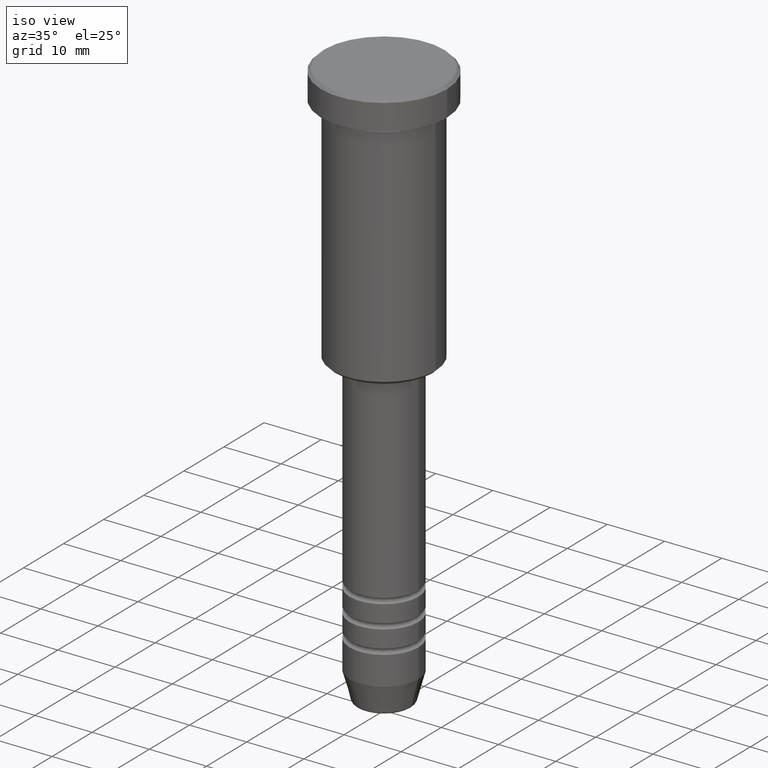
[diagram: clean part render]
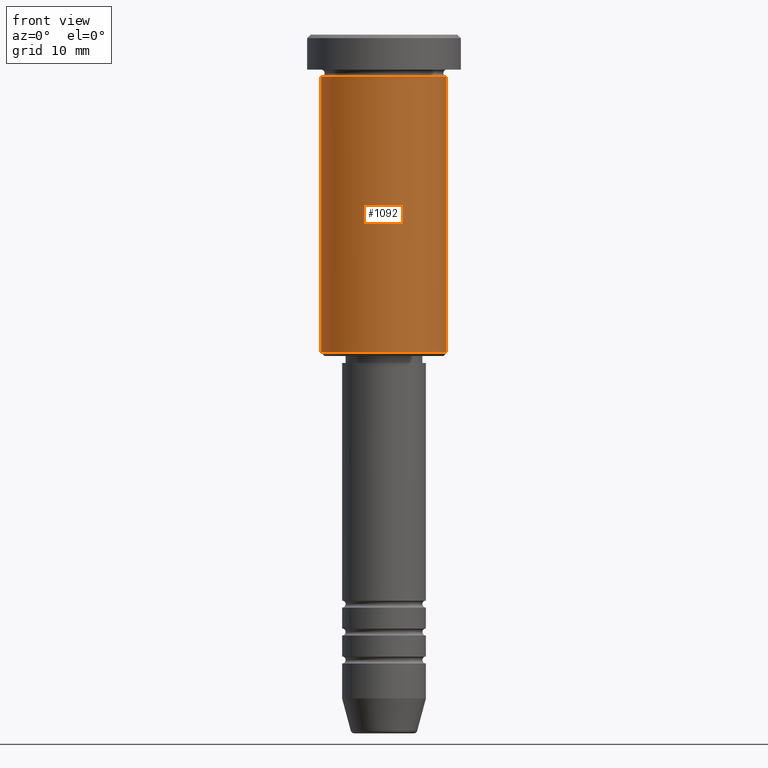
[diagram: tour spotlight — one face highlighted and labeled with its STEP entity id]
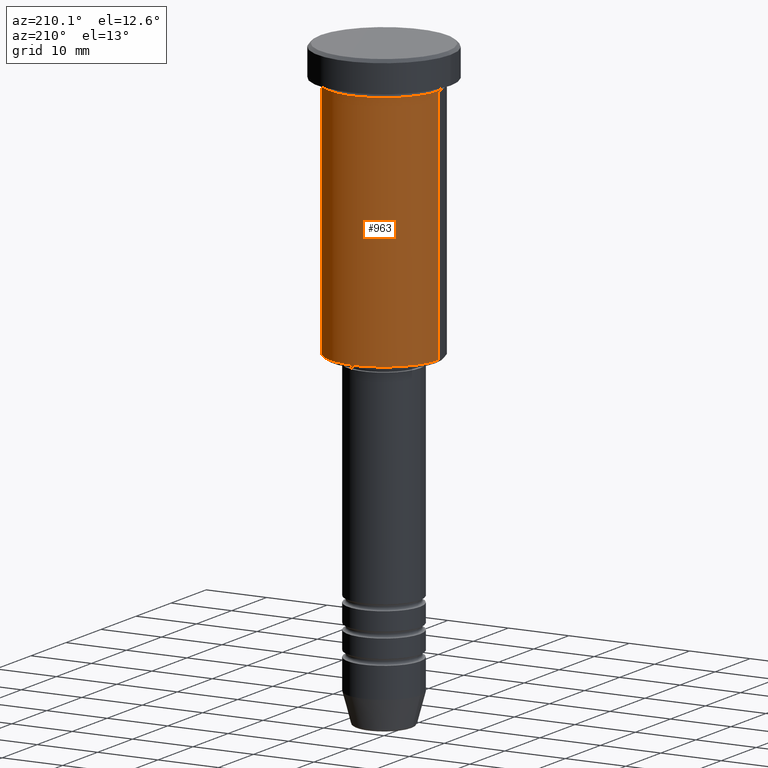
[diagram: tour spotlight — one face highlighted and labeled with its STEP entity id]
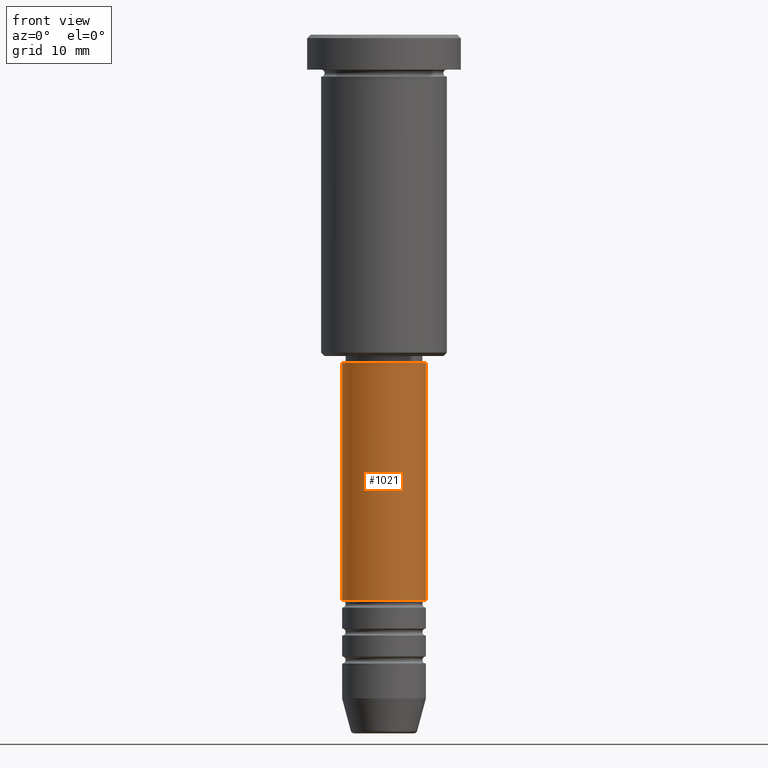
[diagram: tour spotlight — one face highlighted and labeled with its STEP entity id]
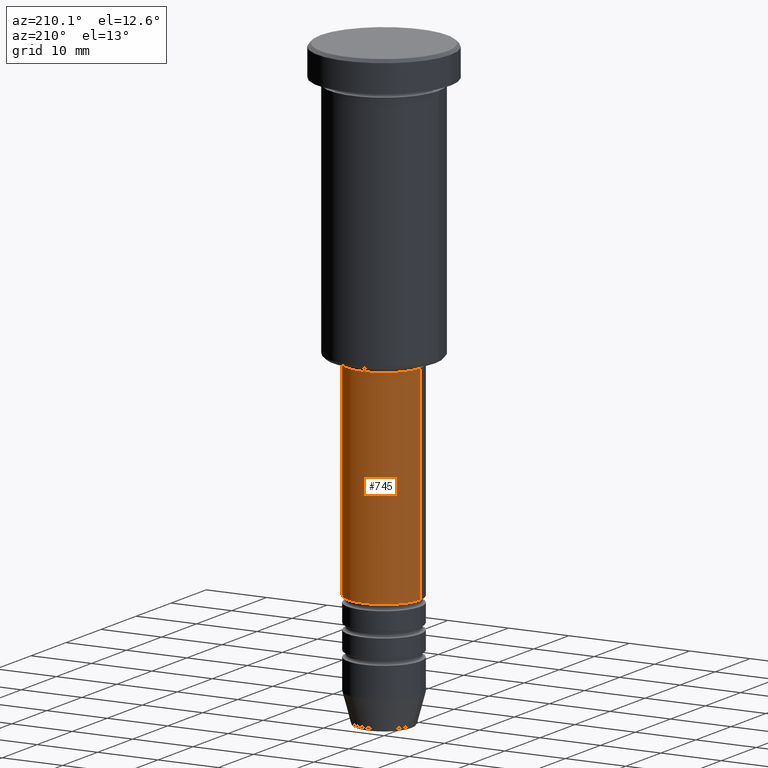
[diagram: tour spotlight — one face highlighted and labeled with its STEP entity id]
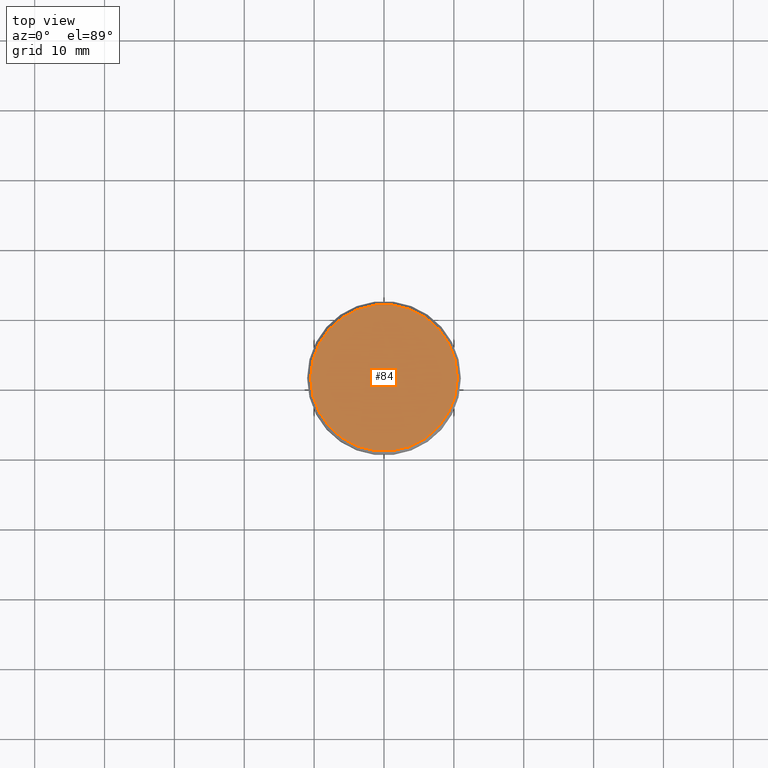
[diagram: tour spotlight — one face highlighted and labeled with its STEP entity id]
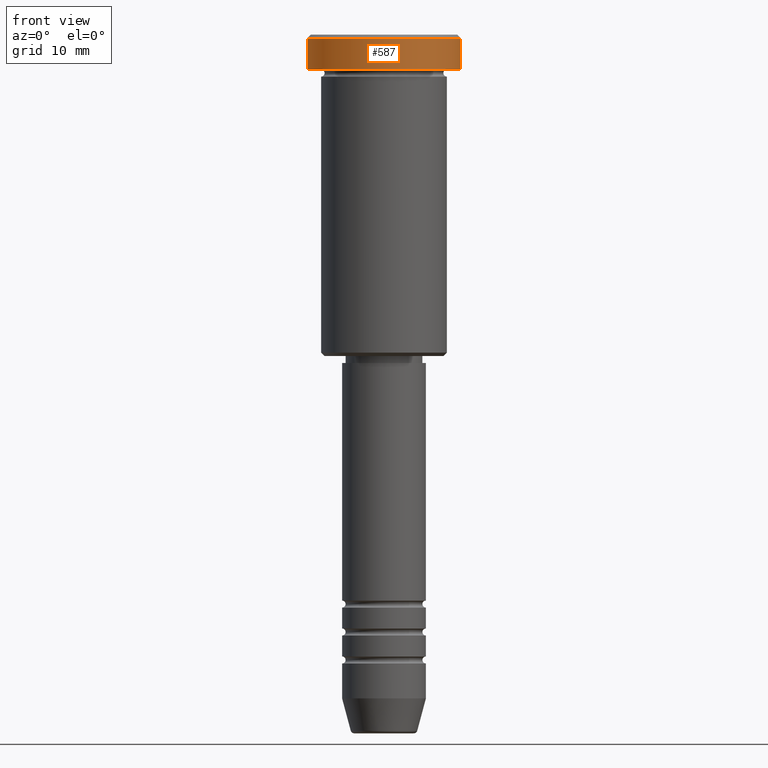
[diagram: tour spotlight — one face highlighted and labeled with its STEP entity id]
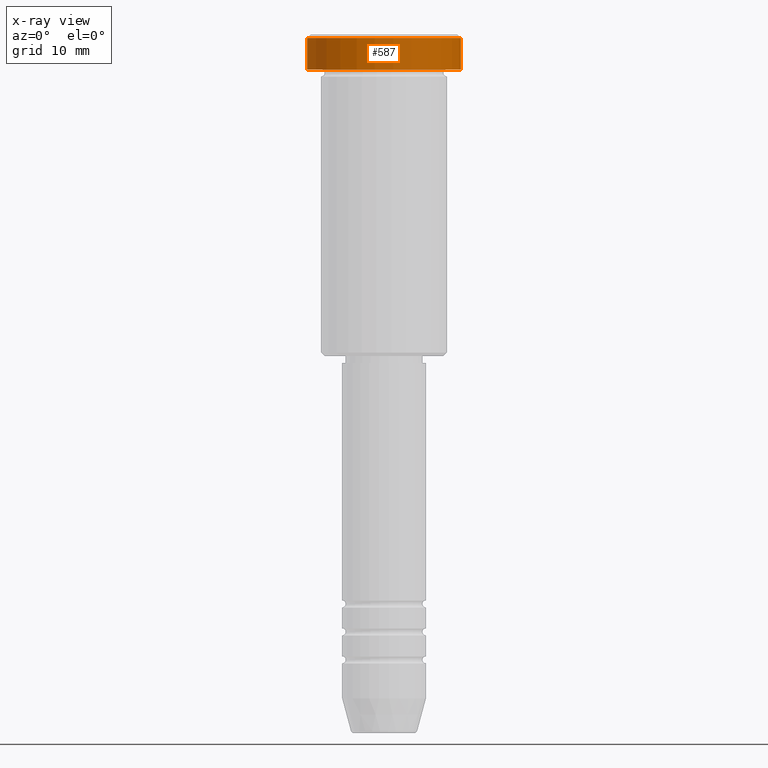
[diagram: x-ray of the same camera — body ghosted, this tour face saturated]
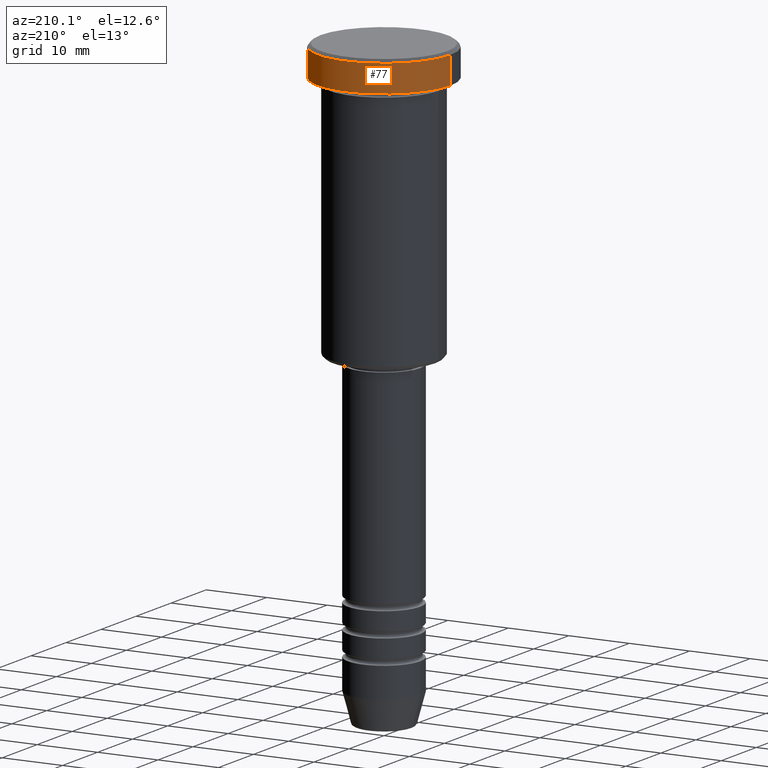
[diagram: tour spotlight — one face highlighted and labeled with its STEP entity id]
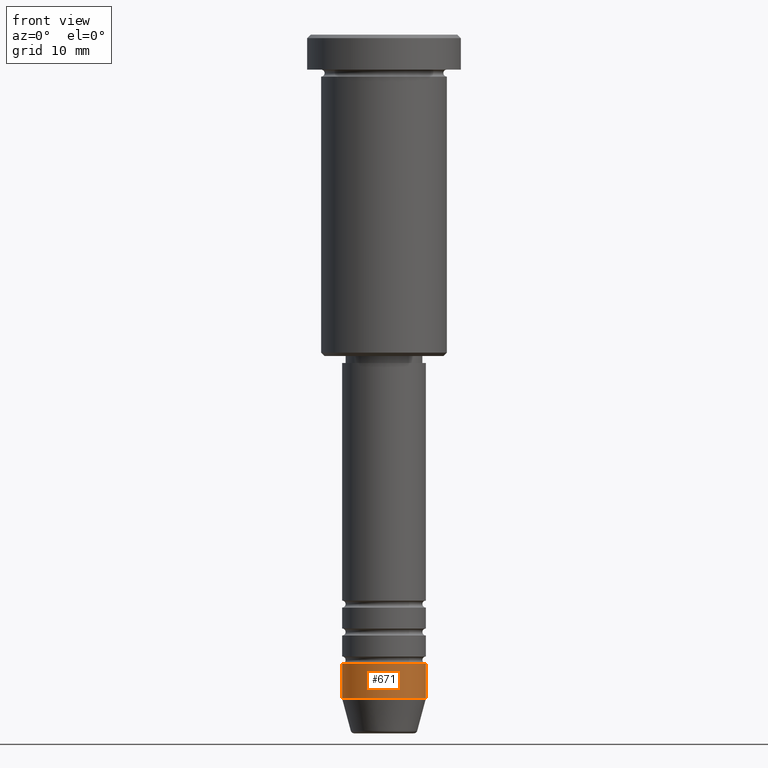
[diagram: tour spotlight — one face highlighted and labeled with its STEP entity id]
A machine part: a face-by-face anatomy tour. The part has 43 B-rep faces; the first image is the clean iso view, then the 8 largest visible faces are spotlighted one at a time (largest first), each with its STEP entity span.

Face 1 — front view, entity #1092. In plain terms, the highlighted cylindrical surface (partial cylindrical patch) has radius 9 mm, axis along (-0, -0, 1).
Definition (entity closure, byte-faithful):
#18 = DIRECTION ( 'NONE',  ( -1.000000000000000000, 0.000000000000000000, 0.000000000000000000 ) ) ;
#73 = CARTESIAN_POINT ( 'NONE',  ( 9.000000000000000000, 0.000000000000000000, -6.000000000000000000 ) ) ;
#107 = CYLINDRICAL_SURFACE ( 'NONE', #1031, 9.000000000000000000 ) ;
#108 = ORIENTED_EDGE ( 'NONE', *, *, #1076, .F. ) ;
#114 = DIRECTION ( 'NONE',  ( -0.000000000000000000, -0.000000000000000000, 1.000000000000000000 ) ) ;
#116 = EDGE_LOOP ( 'NONE', ( #108, #418, #940, #959 ) ) ;
#172 = DIRECTION ( 'NONE',  ( -0.000000000000000000, -0.000000000000000000, 1.000000000000000000 ) ) ;
#185 = CARTESIAN_POINT ( 'NONE',  ( -9.000000000000000000, 1.102182119232617714E-15, -6.000000000000000000 ) ) ;
#193 = LINE ( 'NONE', #1081, #495 ) ;
#300 = DIRECTION ( 'NONE',  ( -0.000000000000000000, -0.000000000000000000, 1.000000000000000000 ) ) ;
#301 = CARTESIAN_POINT ( 'NONE',  ( 0.000000000000000000, 0.000000000000000000, -6.000000000000000000 ) ) ;
#306 = CARTESIAN_POINT ( 'NONE',  ( 0.000000000000000000, 0.000000000000000000, 0.000000000000000000 ) ) ;
#326 = CIRCLE ( 'NONE', #1142, 9.000000000000000000 ) ;
#390 = LINE ( 'NONE', #661, #665 ) ;
#418 = ORIENTED_EDGE ( 'NONE', *, *, #1067, .T. ) ;
#489 = CARTESIAN_POINT ( 'NONE',  ( 9.000000000000000000, 0.000000000000000000, -45.50000000000000711 ) ) ;
#495 = VECTOR ( 'NONE', #172, 1000.000000000000000 ) ;
#570 = DIRECTION ( 'NONE',  ( 1.000000000000000000, 0.000000000000000000, 0.000000000000000000 ) ) ;
#577 = DIRECTION ( 'NONE',  ( -0.000000000000000000, -0.000000000000000000, 1.000000000000000000 ) ) ;
#627 = AXIS2_PLACEMENT_3D ( 'NONE', #301, #577, #729 ) ;
#632 = EDGE_CURVE ( 'NONE', #934, #826, #1122, .T. ) ;
#661 = CARTESIAN_POINT ( 'NONE',  ( -9.000000000000000000, 1.102182119232617714E-15, 0.000000000000000000 ) ) ;
#665 = VECTOR ( 'NONE', #114, 1000.000000000000000 ) ;
#691 = VERTEX_POINT ( 'NONE', #489 ) ;
#720 = CARTESIAN_POINT ( 'NONE',  ( -9.000000000000000000, 1.102182119232617714E-15, -45.50000000000000711 ) ) ;
#729 = DIRECTION ( 'NONE',  ( 1.000000000000000000, 0.000000000000000000, 0.000000000000000000 ) ) ;
#760 = CARTESIAN_POINT ( 'NONE',  ( 0.000000000000000000, 0.000000000000000000, -45.50000000000000711 ) ) ;
#826 = VERTEX_POINT ( 'NONE', #73 ) ;
#844 = FACE_OUTER_BOUND ( 'NONE', #116, .T. ) ;
#894 = VERTEX_POINT ( 'NONE', #720 ) ;
#934 = VERTEX_POINT ( 'NONE', #185 ) ;
#940 = ORIENTED_EDGE ( 'NONE', *, *, #995, .T. ) ;
#959 = ORIENTED_EDGE ( 'NONE', *, *, #632, .F. ) ;
#995 = EDGE_CURVE ( 'NONE', #691, #826, #193, .T. ) ;
#1024 = DIRECTION ( 'NONE',  ( -0.000000000000000000, -0.000000000000000000, 1.000000000000000000 ) ) ;
#1031 = AXIS2_PLACEMENT_3D ( 'NONE', #306, #300, #570 ) ;
#1067 = EDGE_CURVE ( 'NONE', #894, #691, #326, .T. ) ;
#1076 = EDGE_CURVE ( 'NONE', #894, #934, #390, .T. ) ;
#1081 = CARTESIAN_POINT ( 'NONE',  ( 9.000000000000000000, 0.000000000000000000, 0.000000000000000000 ) ) ;
#1092 = ADVANCED_FACE ( 'NONE', ( #844 ), #107, .T. ) ;
#1122 = CIRCLE ( 'NONE', #627, 9.000000000000000000 ) ;
#1142 = AXIS2_PLACEMENT_3D ( 'NONE', #760, #1024, #18 ) ;

Face 2 — auxiliary view, entity #963. In plain terms, the highlighted cylindrical surface (partial cylindrical patch) has radius 9 mm, axis along (-0, -0, 1).
Definition (entity closure, byte-faithful):
#22 = AXIS2_PLACEMENT_3D ( 'NONE', #564, #923, #544 ) ;
#73 = CARTESIAN_POINT ( 'NONE',  ( 9.000000000000000000, 0.000000000000000000, -6.000000000000000000 ) ) ;
#79 = DIRECTION ( 'NONE',  ( -0.000000000000000000, -0.000000000000000000, 1.000000000000000000 ) ) ;
#114 = DIRECTION ( 'NONE',  ( -0.000000000000000000, -0.000000000000000000, 1.000000000000000000 ) ) ;
#115 = AXIS2_PLACEMENT_3D ( 'NONE', #816, #901, #643 ) ;
#172 = DIRECTION ( 'NONE',  ( -0.000000000000000000, -0.000000000000000000, 1.000000000000000000 ) ) ;
#185 = CARTESIAN_POINT ( 'NONE',  ( -9.000000000000000000, 1.102182119232617714E-15, -6.000000000000000000 ) ) ;
#193 = LINE ( 'NONE', #1081, #495 ) ;
#272 = FACE_OUTER_BOUND ( 'NONE', #591, .T. ) ;
#311 = EDGE_CURVE ( 'NONE', #691, #894, #706, .T. ) ;
#390 = LINE ( 'NONE', #661, #665 ) ;
#407 = CIRCLE ( 'NONE', #22, 9.000000000000000000 ) ;
#437 = EDGE_CURVE ( 'NONE', #826, #934, #407, .T. ) ;
#450 = CARTESIAN_POINT ( 'NONE',  ( 0.000000000000000000, 0.000000000000000000, 0.000000000000000000 ) ) ;
#489 = CARTESIAN_POINT ( 'NONE',  ( 9.000000000000000000, 0.000000000000000000, -45.50000000000000711 ) ) ;
#495 = VECTOR ( 'NONE', #172, 1000.000000000000000 ) ;
#544 = DIRECTION ( 'NONE',  ( 1.000000000000000000, 0.000000000000000000, 0.000000000000000000 ) ) ;
#564 = CARTESIAN_POINT ( 'NONE',  ( 0.000000000000000000, 0.000000000000000000, -6.000000000000000000 ) ) ;
#591 = EDGE_LOOP ( 'NONE', ( #992, #1014, #859, #1172 ) ) ;
#643 = DIRECTION ( 'NONE',  ( -1.000000000000000000, 0.000000000000000000, 0.000000000000000000 ) ) ;
#661 = CARTESIAN_POINT ( 'NONE',  ( -9.000000000000000000, 1.102182119232617714E-15, 0.000000000000000000 ) ) ;
#665 = VECTOR ( 'NONE', #114, 1000.000000000000000 ) ;
#691 = VERTEX_POINT ( 'NONE', #489 ) ;
#706 = CIRCLE ( 'NONE', #115, 9.000000000000000000 ) ;
#720 = CARTESIAN_POINT ( 'NONE',  ( -9.000000000000000000, 1.102182119232617714E-15, -45.50000000000000711 ) ) ;
#816 = CARTESIAN_POINT ( 'NONE',  ( 0.000000000000000000, 0.000000000000000000, -45.50000000000000711 ) ) ;
#825 = DIRECTION ( 'NONE',  ( 1.000000000000000000, 0.000000000000000000, 0.000000000000000000 ) ) ;
#826 = VERTEX_POINT ( 'NONE', #73 ) ;
#859 = ORIENTED_EDGE ( 'NONE', *, *, #437, .F. ) ;
#894 = VERTEX_POINT ( 'NONE', #720 ) ;
#901 = DIRECTION ( 'NONE',  ( -0.000000000000000000, -0.000000000000000000, 1.000000000000000000 ) ) ;
#904 = CYLINDRICAL_SURFACE ( 'NONE', #1047, 9.000000000000000000 ) ;
#923 = DIRECTION ( 'NONE',  ( -0.000000000000000000, -0.000000000000000000, 1.000000000000000000 ) ) ;
#934 = VERTEX_POINT ( 'NONE', #185 ) ;
#963 = ADVANCED_FACE ( 'NONE', ( #272 ), #904, .T. ) ;
#992 = ORIENTED_EDGE ( 'NONE', *, *, #311, .T. ) ;
#995 = EDGE_CURVE ( 'NONE', #691, #826, #193, .T. ) ;
#1014 = ORIENTED_EDGE ( 'NONE', *, *, #1076, .T. ) ;
#1047 = AXIS2_PLACEMENT_3D ( 'NONE', #450, #79, #825 ) ;
#1076 = EDGE_CURVE ( 'NONE', #894, #934, #390, .T. ) ;
#1081 = CARTESIAN_POINT ( 'NONE',  ( 9.000000000000000000, 0.000000000000000000, 0.000000000000000000 ) ) ;
#1172 = ORIENTED_EDGE ( 'NONE', *, *, #995, .F. ) ;

Face 3 — front view, entity #1021. In plain terms, the highlighted cylindrical surface (partial cylindrical patch) has radius 6 mm, axis along (-0, -0, 1).
Definition (entity closure, byte-faithful):
#2 = VERTEX_POINT ( 'NONE', #454 ) ;
#28 = ORIENTED_EDGE ( 'NONE', *, *, #658, .T. ) ;
#37 = AXIS2_PLACEMENT_3D ( 'NONE', #1183, #727, #369 ) ;
#39 = VERTEX_POINT ( 'NONE', #977 ) ;
#55 = VECTOR ( 'NONE', #897, 1000.000000000000000 ) ;
#91 = CYLINDRICAL_SURFACE ( 'NONE', #37, 6.000000000000000000 ) ;
#112 = EDGE_CURVE ( 'NONE', #39, #1051, #626, .T. ) ;
#125 = EDGE_CURVE ( 'NONE', #2, #747, #804, .T. ) ;
#130 = DIRECTION ( 'NONE',  ( -0.000000000000000000, -0.000000000000000000, 1.000000000000000000 ) ) ;
#166 = AXIS2_PLACEMENT_3D ( 'NONE', #860, #525, #514 ) ;
#170 = CARTESIAN_POINT ( 'NONE',  ( 6.000000000000000000, 0.000000000000000000, 0.000000000000000000 ) ) ;
#321 = AXIS2_PLACEMENT_3D ( 'NONE', #1006, #130, #373 ) ;
#361 = FACE_OUTER_BOUND ( 'NONE', #734, .T. ) ;
#369 = DIRECTION ( 'NONE',  ( 1.000000000000000000, 0.000000000000000000, 0.000000000000000000 ) ) ;
#373 = DIRECTION ( 'NONE',  ( 1.000000000000000000, 0.000000000000000000, 0.000000000000000000 ) ) ;
#416 = ORIENTED_EDGE ( 'NONE', *, *, #112, .T. ) ;
#431 = ORIENTED_EDGE ( 'NONE', *, *, #758, .F. ) ;
#440 = CARTESIAN_POINT ( 'NONE',  ( -6.000000000000000000, 7.347880794884119736E-16, -47.00000000000000000 ) ) ;
#454 = CARTESIAN_POINT ( 'NONE',  ( -6.000000000000000000, 7.347880794884119736E-16, -80.99999999999998579 ) ) ;
#514 = DIRECTION ( 'NONE',  ( 1.000000000000000000, 0.000000000000000000, 0.000000000000000000 ) ) ;
#525 = DIRECTION ( 'NONE',  ( -0.000000000000000000, -0.000000000000000000, 1.000000000000000000 ) ) ;
#532 = CIRCLE ( 'NONE', #321, 6.000000000000000000 ) ;
#626 = LINE ( 'NONE', #170, #55 ) ;
#634 = CARTESIAN_POINT ( 'NONE',  ( -6.000000000000000000, 7.347880794884119736E-16, 0.000000000000000000 ) ) ;
#657 = CARTESIAN_POINT ( 'NONE',  ( 6.000000000000000000, 0.000000000000000000, -47.00000000000000000 ) ) ;
#658 = EDGE_CURVE ( 'NONE', #2, #39, #532, .T. ) ;
#727 = DIRECTION ( 'NONE',  ( -0.000000000000000000, -0.000000000000000000, 1.000000000000000000 ) ) ;
#734 = EDGE_LOOP ( 'NONE', ( #1129, #28, #416, #431 ) ) ;
#739 = CIRCLE ( 'NONE', #166, 6.000000000000000000 ) ;
#747 = VERTEX_POINT ( 'NONE', #440 ) ;
#758 = EDGE_CURVE ( 'NONE', #747, #1051, #739, .T. ) ;
#804 = LINE ( 'NONE', #634, #1138 ) ;
#860 = CARTESIAN_POINT ( 'NONE',  ( 0.000000000000000000, 0.000000000000000000, -47.00000000000000000 ) ) ;
#897 = DIRECTION ( 'NONE',  ( -0.000000000000000000, -0.000000000000000000, 1.000000000000000000 ) ) ;
#902 = DIRECTION ( 'NONE',  ( -0.000000000000000000, -0.000000000000000000, 1.000000000000000000 ) ) ;
#977 = CARTESIAN_POINT ( 'NONE',  ( 6.000000000000000000, 0.000000000000000000, -80.99999999999998579 ) ) ;
#1006 = CARTESIAN_POINT ( 'NONE',  ( 0.000000000000000000, 0.000000000000000000, -80.99999999999998579 ) ) ;
#1021 = ADVANCED_FACE ( 'NONE', ( #361 ), #91, .T. ) ;
#1051 = VERTEX_POINT ( 'NONE', #657 ) ;
#1129 = ORIENTED_EDGE ( 'NONE', *, *, #125, .F. ) ;
#1138 = VECTOR ( 'NONE', #902, 1000.000000000000000 ) ;
#1183 = CARTESIAN_POINT ( 'NONE',  ( 0.000000000000000000, 0.000000000000000000, 0.000000000000000000 ) ) ;

Face 4 — auxiliary view, entity #745. In plain terms, the highlighted cylindrical surface (partial cylindrical patch) has radius 6 mm, axis along (-0, -0, 1).
Definition (entity closure, byte-faithful):
#2 = VERTEX_POINT ( 'NONE', #454 ) ;
#14 = ORIENTED_EDGE ( 'NONE', *, *, #167, .F. ) ;
#39 = VERTEX_POINT ( 'NONE', #977 ) ;
#55 = VECTOR ( 'NONE', #897, 1000.000000000000000 ) ;
#95 = DIRECTION ( 'NONE',  ( -0.000000000000000000, -0.000000000000000000, 1.000000000000000000 ) ) ;
#112 = EDGE_CURVE ( 'NONE', #39, #1051, #626, .T. ) ;
#125 = EDGE_CURVE ( 'NONE', #2, #747, #804, .T. ) ;
#145 = CIRCLE ( 'NONE', #830, 6.000000000000000000 ) ;
#157 = CARTESIAN_POINT ( 'NONE',  ( 0.000000000000000000, 0.000000000000000000, 0.000000000000000000 ) ) ;
#167 = EDGE_CURVE ( 'NONE', #1051, #747, #668, .T. ) ;
#170 = CARTESIAN_POINT ( 'NONE',  ( 6.000000000000000000, 0.000000000000000000, 0.000000000000000000 ) ) ;
#187 = CARTESIAN_POINT ( 'NONE',  ( 0.000000000000000000, 0.000000000000000000, -80.99999999999998579 ) ) ;
#336 = FACE_OUTER_BOUND ( 'NONE', #784, .T. ) ;
#367 = ORIENTED_EDGE ( 'NONE', *, *, #664, .T. ) ;
#440 = CARTESIAN_POINT ( 'NONE',  ( -6.000000000000000000, 7.347880794884119736E-16, -47.00000000000000000 ) ) ;
#454 = CARTESIAN_POINT ( 'NONE',  ( -6.000000000000000000, 7.347880794884119736E-16, -80.99999999999998579 ) ) ;
#478 = ORIENTED_EDGE ( 'NONE', *, *, #125, .T. ) ;
#482 = CARTESIAN_POINT ( 'NONE',  ( 0.000000000000000000, 0.000000000000000000, -47.00000000000000000 ) ) ;
#492 = DIRECTION ( 'NONE',  ( 1.000000000000000000, 0.000000000000000000, 0.000000000000000000 ) ) ;
#494 = AXIS2_PLACEMENT_3D ( 'NONE', #157, #508, #600 ) ;
#508 = DIRECTION ( 'NONE',  ( -0.000000000000000000, -0.000000000000000000, 1.000000000000000000 ) ) ;
#556 = DIRECTION ( 'NONE',  ( -0.000000000000000000, -0.000000000000000000, 1.000000000000000000 ) ) ;
#600 = DIRECTION ( 'NONE',  ( 1.000000000000000000, 0.000000000000000000, 0.000000000000000000 ) ) ;
#626 = LINE ( 'NONE', #170, #55 ) ;
#634 = CARTESIAN_POINT ( 'NONE',  ( -6.000000000000000000, 7.347880794884119736E-16, 0.000000000000000000 ) ) ;
#657 = CARTESIAN_POINT ( 'NONE',  ( 6.000000000000000000, 0.000000000000000000, -47.00000000000000000 ) ) ;
#664 = EDGE_CURVE ( 'NONE', #39, #2, #145, .T. ) ;
#668 = CIRCLE ( 'NONE', #1071, 6.000000000000000000 ) ;
#745 = ADVANCED_FACE ( 'NONE', ( #336 ), #793, .T. ) ;
#747 = VERTEX_POINT ( 'NONE', #440 ) ;
#784 = EDGE_LOOP ( 'NONE', ( #367, #478, #14, #1025 ) ) ;
#793 = CYLINDRICAL_SURFACE ( 'NONE', #494, 6.000000000000000000 ) ;
#804 = LINE ( 'NONE', #634, #1138 ) ;
#830 = AXIS2_PLACEMENT_3D ( 'NONE', #187, #556, #492 ) ;
#897 = DIRECTION ( 'NONE',  ( -0.000000000000000000, -0.000000000000000000, 1.000000000000000000 ) ) ;
#902 = DIRECTION ( 'NONE',  ( -0.000000000000000000, -0.000000000000000000, 1.000000000000000000 ) ) ;
#924 = DIRECTION ( 'NONE',  ( 1.000000000000000000, 0.000000000000000000, 0.000000000000000000 ) ) ;
#977 = CARTESIAN_POINT ( 'NONE',  ( 6.000000000000000000, 0.000000000000000000, -80.99999999999998579 ) ) ;
#1025 = ORIENTED_EDGE ( 'NONE', *, *, #112, .F. ) ;
#1051 = VERTEX_POINT ( 'NONE', #657 ) ;
#1071 = AXIS2_PLACEMENT_3D ( 'NONE', #482, #95, #924 ) ;
#1138 = VECTOR ( 'NONE', #902, 1000.000000000000000 ) ;

Face 5 — top view, entity #84. In plain terms, the highlighted planar face has unit normal (0, -0, 1).
Definition (entity closure, byte-faithful):
#25 = DIRECTION ( 'NONE',  ( -0.000000000000000000, -0.000000000000000000, 1.000000000000000000 ) ) ;
#26 = AXIS2_PLACEMENT_3D ( 'NONE', #890, #1163, #708 ) ;
#82 = CARTESIAN_POINT ( 'NONE',  ( -10.49999999999999467, 0.000000000000000000, 0.000000000000000000 ) ) ;
#84 = ADVANCED_FACE ( 'NONE', ( #547 ), #351, .T. ) ;
#202 = DIRECTION ( 'NONE',  ( -0.000000000000000000, -0.000000000000000000, 1.000000000000000000 ) ) ;
#217 = ORIENTED_EDGE ( 'NONE', *, *, #1126, .T. ) ;
#278 = CARTESIAN_POINT ( 'NONE',  ( 10.49999999999999467, 1.316495309083404420E-15, 0.000000000000000000 ) ) ;
#350 = EDGE_CURVE ( 'NONE', #875, #497, #761, .T. ) ;
#351 = PLANE ( 'NONE',  #26 ) ;
#354 = ORIENTED_EDGE ( 'NONE', *, *, #350, .T. ) ;
#477 = DIRECTION ( 'NONE',  ( 1.000000000000000000, 0.000000000000000000, 0.000000000000000000 ) ) ;
#497 = VERTEX_POINT ( 'NONE', #82 ) ;
#537 = AXIS2_PLACEMENT_3D ( 'NONE', #1099, #202, #827 ) ;
#547 = FACE_OUTER_BOUND ( 'NONE', #1174, .T. ) ;
#667 = CARTESIAN_POINT ( 'NONE',  ( 0.000000000000000000, 0.000000000000000000, 0.000000000000000000 ) ) ;
#708 = DIRECTION ( 'NONE',  ( 1.000000000000000000, 0.000000000000000000, 0.000000000000000000 ) ) ;
#722 = CIRCLE ( 'NONE', #1182, 10.49999999999999467 ) ;
#761 = CIRCLE ( 'NONE', #537, 10.49999999999999467 ) ;
#827 = DIRECTION ( 'NONE',  ( 1.000000000000000000, 0.000000000000000000, 0.000000000000000000 ) ) ;
#875 = VERTEX_POINT ( 'NONE', #278 ) ;
#890 = CARTESIAN_POINT ( 'NONE',  ( 0.000000000000000000, 0.000000000000000000, 0.000000000000000000 ) ) ;
#1099 = CARTESIAN_POINT ( 'NONE',  ( 0.000000000000000000, 0.000000000000000000, 0.000000000000000000 ) ) ;
#1126 = EDGE_CURVE ( 'NONE', #497, #875, #722, .T. ) ;
#1163 = DIRECTION ( 'NONE',  ( 0.000000000000000000, -0.000000000000000000, 1.000000000000000000 ) ) ;
#1174 = EDGE_LOOP ( 'NONE', ( #217, #354 ) ) ;
#1182 = AXIS2_PLACEMENT_3D ( 'NONE', #667, #25, #477 ) ;

Face 6 — front view, entity #587. An x-ray twin of the same camera follows (body ghosted, this face saturated) — the face is partly hidden behind the body. In plain terms, the highlighted cylindrical surface (partial cylindrical patch) has radius 11 mm, axis along (-0, -0, 1).
Definition (entity closure, byte-faithful):
#17 = AXIS2_PLACEMENT_3D ( 'NONE', #679, #36, #669 ) ;
#36 = DIRECTION ( 'NONE',  ( -0.000000000000000000, -0.000000000000000000, 1.000000000000000000 ) ) ;
#43 = EDGE_LOOP ( 'NONE', ( #1041, #696, #555, #1095 ) ) ;
#113 = VECTOR ( 'NONE', #503, 1000.000000000000000 ) ;
#148 = AXIS2_PLACEMENT_3D ( 'NONE', #937, #496, #744 ) ;
#153 = DIRECTION ( 'NONE',  ( -0.000000000000000000, -0.000000000000000000, 1.000000000000000000 ) ) ;
#154 = VERTEX_POINT ( 'NONE', #191 ) ;
#191 = CARTESIAN_POINT ( 'NONE',  ( -11.00000000000000000, 1.347111479062088602E-15, -5.000000000000000000 ) ) ;
#313 = VERTEX_POINT ( 'NONE', #568 ) ;
#378 = FACE_OUTER_BOUND ( 'NONE', #43, .T. ) ;
#386 = VECTOR ( 'NONE', #704, 1000.000000000000000 ) ;
#435 = CARTESIAN_POINT ( 'NONE',  ( 11.00000000000000178, 0.000000000000000000, 0.000000000000000000 ) ) ;
#479 = AXIS2_PLACEMENT_3D ( 'NONE', #771, #153, #605 ) ;
#496 = DIRECTION ( 'NONE',  ( 0.000000000000000000, 0.000000000000000000, -1.000000000000000000 ) ) ;
#503 = DIRECTION ( 'NONE',  ( -0.000000000000000000, -0.000000000000000000, 1.000000000000000000 ) ) ;
#555 = ORIENTED_EDGE ( 'NONE', *, *, #764, .T. ) ;
#568 = CARTESIAN_POINT ( 'NONE',  ( 11.00000000000000178, 0.000000000000000000, -0.5000000000000022204 ) ) ;
#587 = ADVANCED_FACE ( 'NONE', ( #378 ), #674, .T. ) ;
#592 = CIRCLE ( 'NONE', #148, 11.00000000000000178 ) ;
#593 = LINE ( 'NONE', #955, #113 ) ;
#605 = DIRECTION ( 'NONE',  ( 1.000000000000000000, 0.000000000000000000, 0.000000000000000000 ) ) ;
#669 = DIRECTION ( 'NONE',  ( 1.000000000000000000, 0.000000000000000000, 0.000000000000000000 ) ) ;
#674 = CYLINDRICAL_SURFACE ( 'NONE', #17, 11.00000000000000178 ) ;
#679 = CARTESIAN_POINT ( 'NONE',  ( 0.000000000000000000, 0.000000000000000000, 0.000000000000000000 ) ) ;
#696 = ORIENTED_EDGE ( 'NONE', *, *, #783, .T. ) ;
#704 = DIRECTION ( 'NONE',  ( -0.000000000000000000, -0.000000000000000000, 1.000000000000000000 ) ) ;
#744 = DIRECTION ( 'NONE',  ( 1.000000000000000000, 0.000000000000000000, 0.000000000000000000 ) ) ;
#764 = EDGE_CURVE ( 'NONE', #1043, #313, #972, .T. ) ;
#771 = CARTESIAN_POINT ( 'NONE',  ( 0.000000000000000000, 0.000000000000000000, -5.000000000000000000 ) ) ;
#775 = VERTEX_POINT ( 'NONE', #865 ) ;
#783 = EDGE_CURVE ( 'NONE', #154, #1043, #987, .T. ) ;
#865 = CARTESIAN_POINT ( 'NONE',  ( -11.00000000000000178, 1.347111479062088602E-15, -0.5000000000000022204 ) ) ;
#872 = EDGE_CURVE ( 'NONE', #154, #775, #593, .T. ) ;
#937 = CARTESIAN_POINT ( 'NONE',  ( 0.000000000000000000, 0.000000000000000000, -0.5000000000000022204 ) ) ;
#955 = CARTESIAN_POINT ( 'NONE',  ( -11.00000000000000178, 1.347111479062088602E-15, 0.000000000000000000 ) ) ;
#972 = LINE ( 'NONE', #435, #386 ) ;
#987 = CIRCLE ( 'NONE', #479, 11.00000000000000000 ) ;
#1041 = ORIENTED_EDGE ( 'NONE', *, *, #872, .F. ) ;
#1043 = VERTEX_POINT ( 'NONE', #1121 ) ;
#1095 = ORIENTED_EDGE ( 'NONE', *, *, #1130, .T. ) ;
#1121 = CARTESIAN_POINT ( 'NONE',  ( 11.00000000000000000, 0.000000000000000000, -5.000000000000000000 ) ) ;
#1130 = EDGE_CURVE ( 'NONE', #313, #775, #592, .T. ) ;

Face 7 — auxiliary view, entity #77. In plain terms, the highlighted cylindrical surface (partial cylindrical patch) has radius 11 mm, axis along (-0, -0, 1).
Definition (entity closure, byte-faithful):
#77 = ADVANCED_FACE ( 'NONE', ( #156 ), #809, .T. ) ;
#113 = VECTOR ( 'NONE', #503, 1000.000000000000000 ) ;
#154 = VERTEX_POINT ( 'NONE', #191 ) ;
#156 = FACE_OUTER_BOUND ( 'NONE', #335, .T. ) ;
#191 = CARTESIAN_POINT ( 'NONE',  ( -11.00000000000000000, 1.347111479062088602E-15, -5.000000000000000000 ) ) ;
#268 = DIRECTION ( 'NONE',  ( 1.000000000000000000, 0.000000000000000000, 0.000000000000000000 ) ) ;
#291 = AXIS2_PLACEMENT_3D ( 'NONE', #470, #655, #268 ) ;
#313 = VERTEX_POINT ( 'NONE', #568 ) ;
#318 = ORIENTED_EDGE ( 'NONE', *, *, #389, .T. ) ;
#335 = EDGE_LOOP ( 'NONE', ( #962, #518, #318, #1055 ) ) ;
#338 = DIRECTION ( 'NONE',  ( 1.000000000000000000, 0.000000000000000000, 0.000000000000000000 ) ) ;
#386 = VECTOR ( 'NONE', #704, 1000.000000000000000 ) ;
#389 = EDGE_CURVE ( 'NONE', #775, #313, #1052, .T. ) ;
#392 = CIRCLE ( 'NONE', #1143, 11.00000000000000000 ) ;
#435 = CARTESIAN_POINT ( 'NONE',  ( 11.00000000000000178, 0.000000000000000000, 0.000000000000000000 ) ) ;
#449 = EDGE_CURVE ( 'NONE', #1043, #154, #392, .T. ) ;
#470 = CARTESIAN_POINT ( 'NONE',  ( 0.000000000000000000, 0.000000000000000000, -0.5000000000000022204 ) ) ;
#503 = DIRECTION ( 'NONE',  ( -0.000000000000000000, -0.000000000000000000, 1.000000000000000000 ) ) ;
#518 = ORIENTED_EDGE ( 'NONE', *, *, #872, .T. ) ;
#524 = CARTESIAN_POINT ( 'NONE',  ( 0.000000000000000000, 0.000000000000000000, 0.000000000000000000 ) ) ;
#568 = CARTESIAN_POINT ( 'NONE',  ( 11.00000000000000178, 0.000000000000000000, -0.5000000000000022204 ) ) ;
#593 = LINE ( 'NONE', #955, #113 ) ;
#655 = DIRECTION ( 'NONE',  ( 0.000000000000000000, 0.000000000000000000, -1.000000000000000000 ) ) ;
#689 = AXIS2_PLACEMENT_3D ( 'NONE', #524, #1080, #884 ) ;
#699 = DIRECTION ( 'NONE',  ( -0.000000000000000000, -0.000000000000000000, 1.000000000000000000 ) ) ;
#704 = DIRECTION ( 'NONE',  ( -0.000000000000000000, -0.000000000000000000, 1.000000000000000000 ) ) ;
#764 = EDGE_CURVE ( 'NONE', #1043, #313, #972, .T. ) ;
#775 = VERTEX_POINT ( 'NONE', #865 ) ;
#785 = CARTESIAN_POINT ( 'NONE',  ( 0.000000000000000000, 0.000000000000000000, -5.000000000000000000 ) ) ;
#809 = CYLINDRICAL_SURFACE ( 'NONE', #689, 11.00000000000000178 ) ;
#865 = CARTESIAN_POINT ( 'NONE',  ( -11.00000000000000178, 1.347111479062088602E-15, -0.5000000000000022204 ) ) ;
#872 = EDGE_CURVE ( 'NONE', #154, #775, #593, .T. ) ;
#884 = DIRECTION ( 'NONE',  ( 1.000000000000000000, 0.000000000000000000, 0.000000000000000000 ) ) ;
#955 = CARTESIAN_POINT ( 'NONE',  ( -11.00000000000000178, 1.347111479062088602E-15, 0.000000000000000000 ) ) ;
#962 = ORIENTED_EDGE ( 'NONE', *, *, #449, .T. ) ;
#972 = LINE ( 'NONE', #435, #386 ) ;
#1043 = VERTEX_POINT ( 'NONE', #1121 ) ;
#1052 = CIRCLE ( 'NONE', #291, 11.00000000000000178 ) ;
#1055 = ORIENTED_EDGE ( 'NONE', *, *, #764, .F. ) ;
#1080 = DIRECTION ( 'NONE',  ( -0.000000000000000000, -0.000000000000000000, 1.000000000000000000 ) ) ;
#1121 = CARTESIAN_POINT ( 'NONE',  ( 11.00000000000000000, 0.000000000000000000, -5.000000000000000000 ) ) ;
#1143 = AXIS2_PLACEMENT_3D ( 'NONE', #785, #699, #338 ) ;

Face 8 — front view, entity #671. In plain terms, the highlighted cylindrical surface (partial cylindrical patch) has radius 6 mm, axis along (-0, -0, 1).
Definition (entity closure, byte-faithful):
#87 = LINE ( 'NONE', #1171, #365 ) ;
#129 = AXIS2_PLACEMENT_3D ( 'NONE', #406, #755, #1044 ) ;
#141 = EDGE_LOOP ( 'NONE', ( #953, #956, #534, #921 ) ) ;
#180 = VERTEX_POINT ( 'NONE', #639 ) ;
#207 = VECTOR ( 'NONE', #260, 1000.000000000000000 ) ;
#225 = CARTESIAN_POINT ( 'NONE',  ( -5.999999999999999112, 7.347880794884118750E-16, -90.00000000000000000 ) ) ;
#260 = DIRECTION ( 'NONE',  ( -0.000000000000000000, -0.000000000000000000, 1.000000000000000000 ) ) ;
#280 = CARTESIAN_POINT ( 'NONE',  ( 5.999999999999999112, 0.000000000000000000, -90.00000000000000000 ) ) ;
#319 = FACE_OUTER_BOUND ( 'NONE', #141, .T. ) ;
#365 = VECTOR ( 'NONE', #1089, 1000.000000000000000 ) ;
#406 = CARTESIAN_POINT ( 'NONE',  ( 0.000000000000000000, 0.000000000000000000, 0.000000000000000000 ) ) ;
#493 = EDGE_CURVE ( 'NONE', #606, #871, #637, .T. ) ;
#534 = ORIENTED_EDGE ( 'NONE', *, *, #958, .T. ) ;
#604 = VERTEX_POINT ( 'NONE', #280 ) ;
#606 = VERTEX_POINT ( 'NONE', #1040 ) ;
#611 = CIRCLE ( 'NONE', #721, 6.000000000000000000 ) ;
#630 = CIRCLE ( 'NONE', #1160, 5.999999999999999112 ) ;
#637 = LINE ( 'NONE', #896, #207 ) ;
#639 = CARTESIAN_POINT ( 'NONE',  ( 6.000000000000000000, 0.000000000000000000, -95.00000000000000000 ) ) ;
#646 = CARTESIAN_POINT ( 'NONE',  ( 0.000000000000000000, 0.000000000000000000, -95.00000000000000000 ) ) ;
#671 = ADVANCED_FACE ( 'NONE', ( #319 ), #845, .T. ) ;
#692 = CARTESIAN_POINT ( 'NONE',  ( 0.000000000000000000, 0.000000000000000000, -90.00000000000000000 ) ) ;
#714 = DIRECTION ( 'NONE',  ( 1.000000000000000000, 0.000000000000000000, 0.000000000000000000 ) ) ;
#721 = AXIS2_PLACEMENT_3D ( 'NONE', #646, #990, #714 ) ;
#755 = DIRECTION ( 'NONE',  ( -0.000000000000000000, -0.000000000000000000, 1.000000000000000000 ) ) ;
#782 = DIRECTION ( 'NONE',  ( -0.000000000000000000, -0.000000000000000000, 1.000000000000000000 ) ) ;
#837 = EDGE_CURVE ( 'NONE', #871, #604, #630, .T. ) ;
#845 = CYLINDRICAL_SURFACE ( 'NONE', #129, 6.000000000000000000 ) ;
#871 = VERTEX_POINT ( 'NONE', #225 ) ;
#896 = CARTESIAN_POINT ( 'NONE',  ( -6.000000000000000000, 7.347880794884119736E-16, 0.000000000000000000 ) ) ;
#921 = ORIENTED_EDGE ( 'NONE', *, *, #837, .F. ) ;
#948 = EDGE_CURVE ( 'NONE', #606, #180, #611, .T. ) ;
#953 = ORIENTED_EDGE ( 'NONE', *, *, #493, .F. ) ;
#956 = ORIENTED_EDGE ( 'NONE', *, *, #948, .T. ) ;
#958 = EDGE_CURVE ( 'NONE', #180, #604, #87, .T. ) ;
#990 = DIRECTION ( 'NONE',  ( -0.000000000000000000, -0.000000000000000000, 1.000000000000000000 ) ) ;
#1040 = CARTESIAN_POINT ( 'NONE',  ( -6.000000000000000000, 7.347880794884119736E-16, -95.00000000000000000 ) ) ;
#1044 = DIRECTION ( 'NONE',  ( 1.000000000000000000, 0.000000000000000000, 0.000000000000000000 ) ) ;
#1089 = DIRECTION ( 'NONE',  ( -0.000000000000000000, -0.000000000000000000, 1.000000000000000000 ) ) ;
#1150 = DIRECTION ( 'NONE',  ( 1.000000000000000000, 0.000000000000000000, 0.000000000000000000 ) ) ;
#1160 = AXIS2_PLACEMENT_3D ( 'NONE', #692, #782, #1150 ) ;
#1171 = CARTESIAN_POINT ( 'NONE',  ( 6.000000000000000000, 0.000000000000000000, 0.000000000000000000 ) ) ;